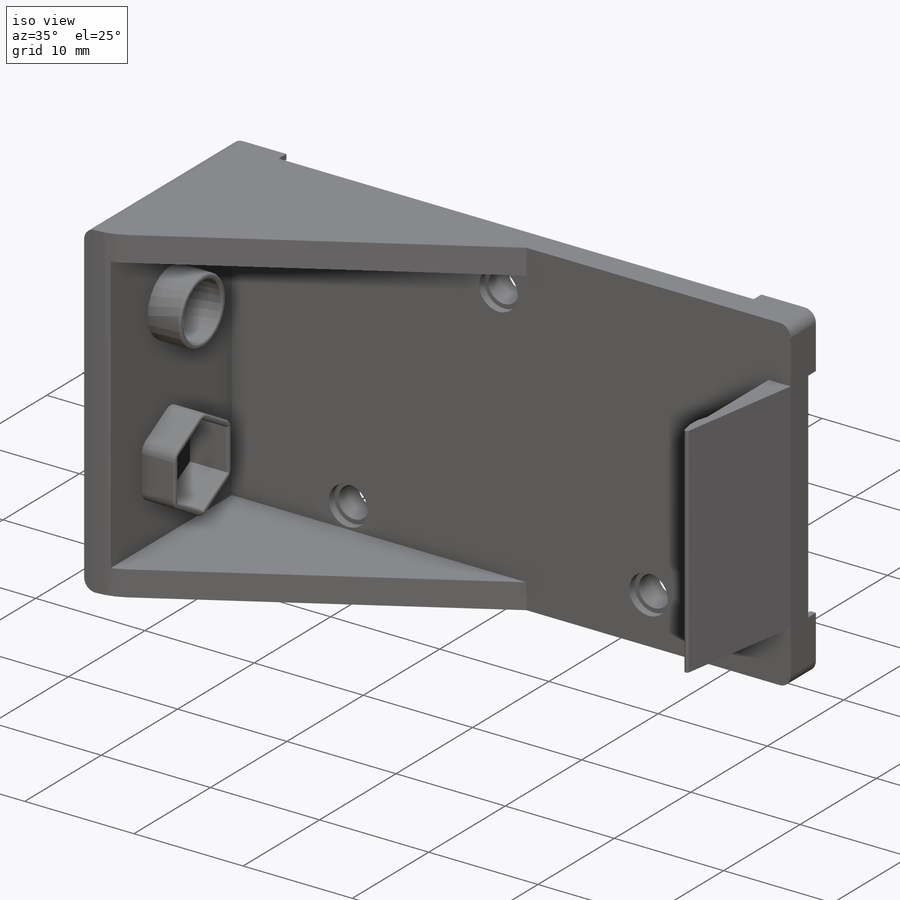
[diagram: iso view]
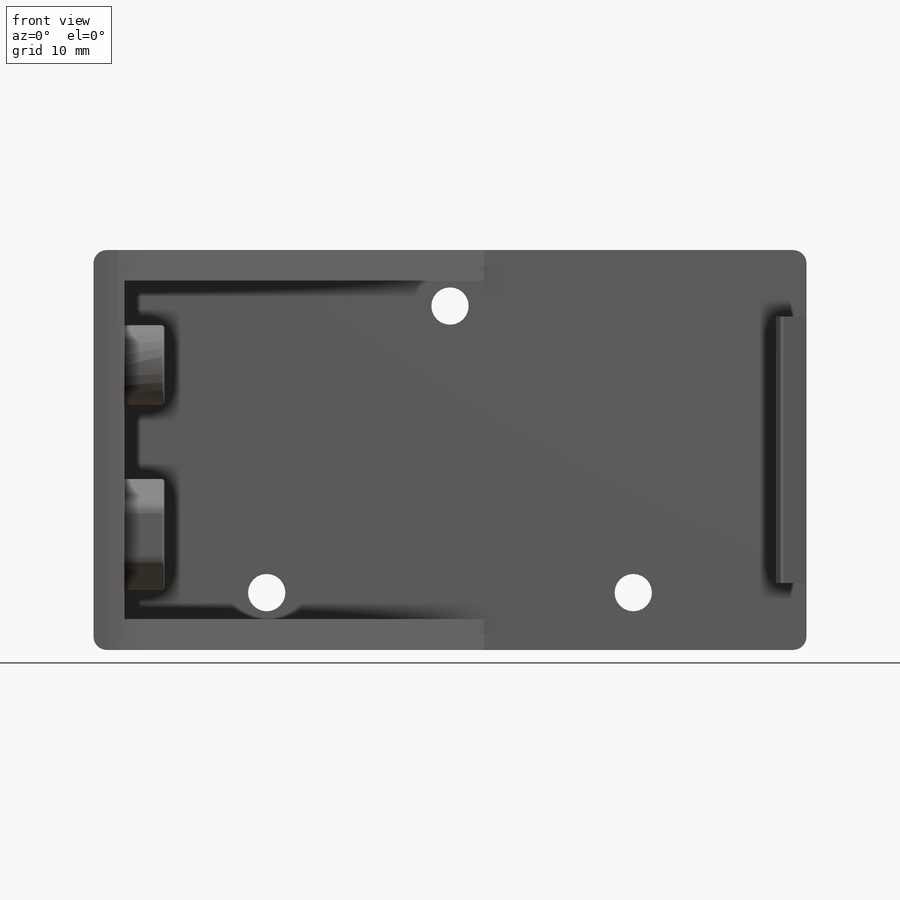
[diagram: front view]
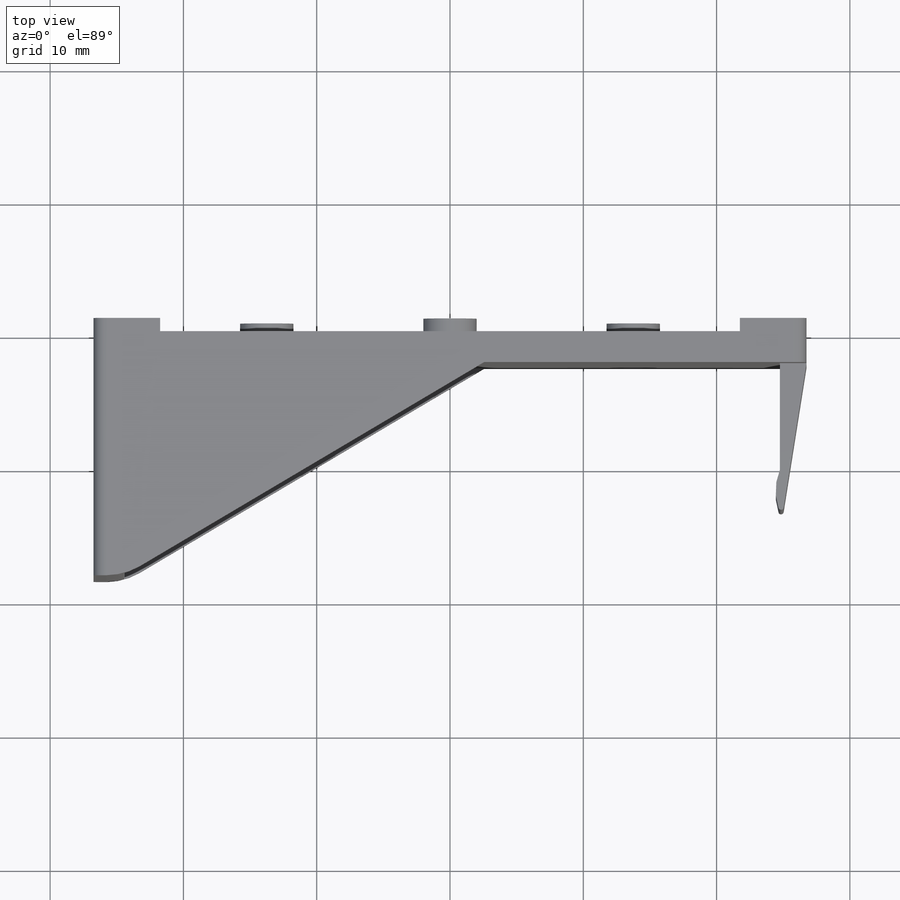
[diagram: top view]
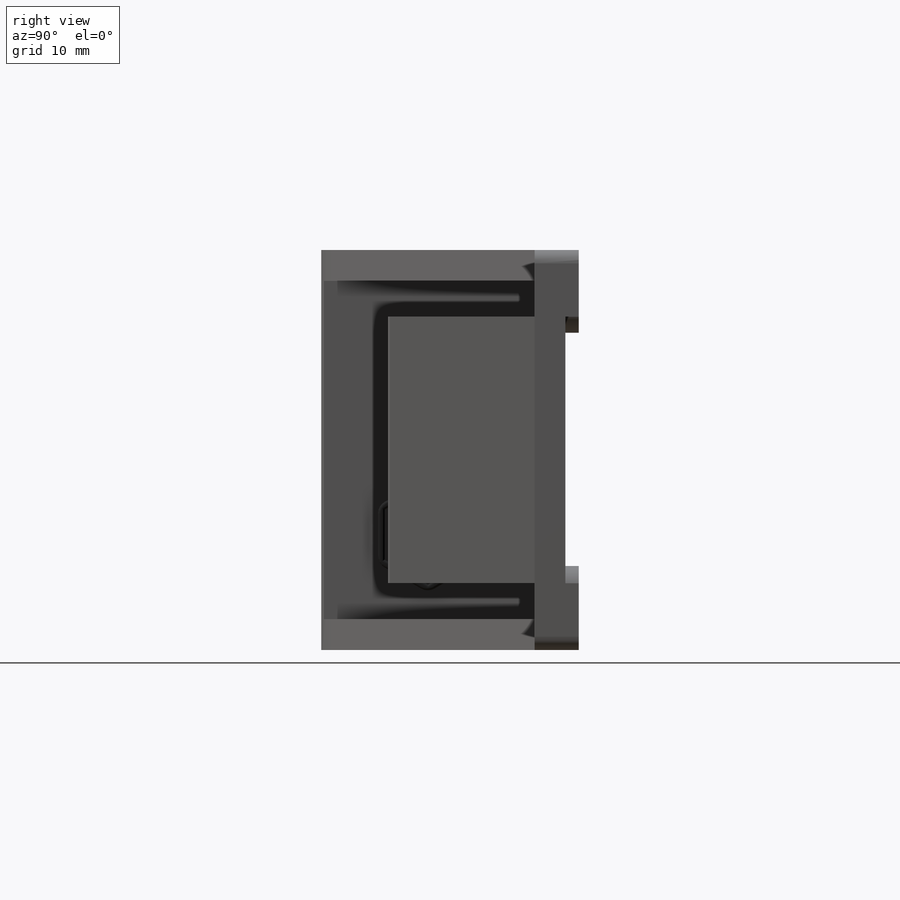
[diagram: right view]
SOLIDWORKS PART (.sldprt)
format: sldprt  version: not decoded by parser v0  size: 512,000 bytes
history: native  units: mm
features: sketch x10, extrude x7, fillet x5, mirror x3, material x1, hole x1, shell x1, cut_extrude x1 (+13 scaffold rows collapsed)
feature tree (42):
  scaffold x13  (default folders/planes/origin — collapsed)
  material  "Material <not specified>"
  sketch  "Sketch1"  dims[c1.D1=~45.705363mm c1.D2=~100.728073mm c2.D1=30.0mm c2.D2=53.5mm c2.D3=~8.665294mm]
  extrude  "Boss-Extrude1"  Depth=2.3114mm
  sketch  "Sketch2"  dims[c1.D1=30.0mm c1.D2=~6.327497mm c2.D1=2.3114mm]
  extrude  "Boss-Extrude2"  Depth=16mm
  sketch  "Sketch3"  dims[D1=27.0mm D2=0.0mm]
  extrude  "Boss-Extrude3"  Depth=2.3114mm
  mirror  "Mirror1"
  fillet  "Fillet1"  Radius=1mm
  fillet  "Fillet2"  Radius=5mm
  sketch  "Sketch7"  dims[D1=5.0mm D3=0.5mm D2=0.5mm]
  extrude  "Boss-Extrude5"  Depth=1mm
  mirror  "Mirror2"
  mirror  "Mirror3"
  sketch  "Sketch9"  dims[D1=4.0mm D2=4.2mm D3=27.5mm D4=21.5mm]
  extrude  "Boss-Extrude6"  Depth=1mm
  hole  "CBORE for #00 Binding Head Machine Screw1"  Diameter=2.8mm Depth=3.311425mm
  sketch  "Sketch17"
  sketch  "Sketch16"  dims[hole-wizard template sketch: 41 standard entries collapsed; hole parameters kept: c12.Thru Hole Dia.=2.8mm c12.Thru Hole Depth=~3.311425mm c12.C'Bore Dia.=3.556mm c12.C'Bore Depth=0.7112mm]
  sketch  "Sketch18"  dims[c1.D1=~5.241858mm c1.D4=4.0mm c2.D1=8.0mm c2.D2=~14.970324mm c3.D2=81.0deg c3.D3=2.0mm c3.D5=11.5mm]
  extrude  "Boss-Extrude7"  Depth=10mm
  fillet  "Fillet3"  Radius=0.2mm
  sketch  "Sketch20"  dims[D1=6.0mm D2=7.5mm D3=12.7mm D4=8.0mm D5=~4.072875mm]
  extrude  "Boss-Extrude8"  Depth=3mm
  shell  "Shell1"  Thickness=0.5mm
  fillet  "Fillet5"  Radius=1mm
  fillet  "Fillet6"  Radius=0.2mm
  sketch  "Sketch22"  dims[D1=2.0mm D2=12.7mm]
  cut_extrude  "Cut-Extrude3"  [1 undecoded]
decode coverage: 23 of 28 modeling features carry decoded parameters
note: ~ marks probable driven/reference dimensions
note: 1 parameter value undecoded
note: suppression state not decoded; provenance and decode notes live in map.json
